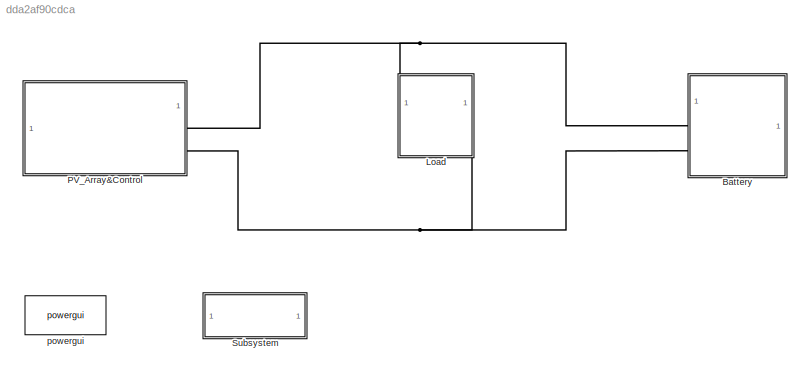
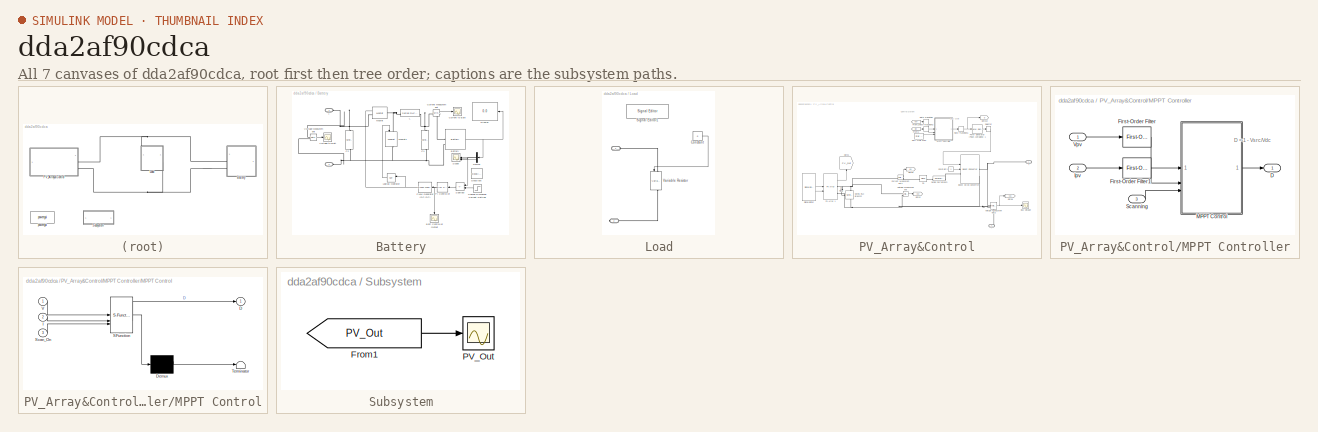
[diagram: thumbnail index - all 7 canvases of the model, root first then tree order]
MODEL slx_dda2af90cdca
KIND model
CONFIG AbsTol = auto
CONFIG EnableMultiTasking = off
CONFIG FixedStep = auto
CONFIG MaxStep = 1e2
CONFIG MinStep = auto
CONFIG RelTol = 1e-3
CONFIG SampleTimeConstraint = Unconstrained
CONFIG SolverName = VariableStepDiscrete
CONFIG StartTime = 0.0
CONFIG StopTime = 720
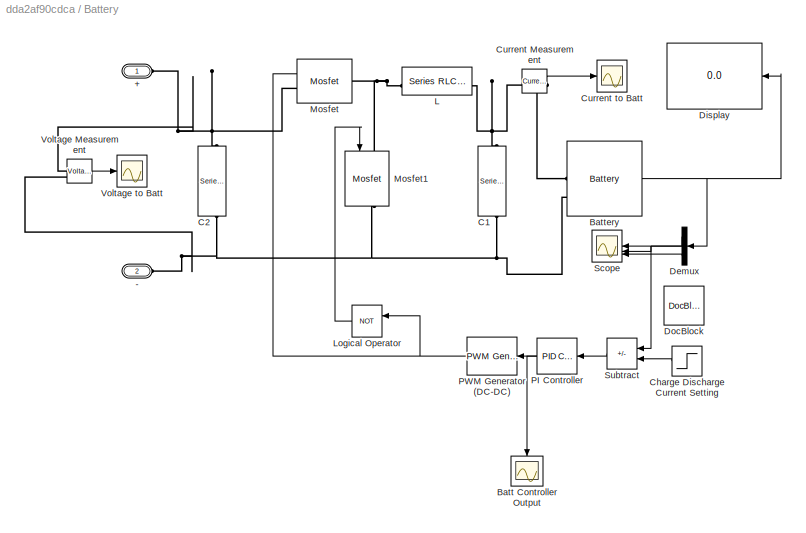
BLOCK [SubSystem] Battery
BLOCK [PMIOPort] Battery/+
  Side = Left
BLOCK [PMIOPort] Battery/-
  Port = 2
  Side = Left
BLOCK [Scope] Battery/Batt Controller Output
  Floating = off
  NameLocation = left
  NumInputPorts = 1
  ScopeSpecificationString = Simulink.scopes.TimeScopeBlockCfg('CurrentConfiguration', extmgr.ConfigurationSet(extmgr.Configuration('Core','General UI',true),extmgr.Configuration('Core','Source UI',true),extmgr.Configuration('Sources','WiredSimulink',true,'DataLoggingVariableName','ScopeData5'),extmgr.Configuration('Visuals','Time Domain',true,'SerializedDisplays',{struct('MinYLimReal','0.8','MaxYLimReal','1.00000','YLabelRea...<+1384ch>
BLOCK [Reference] Battery/Battery  REF=spsBatteryLib/Battery
  LibrarySourceBlock = electricdrivelib/Extra Sources/Battery
  SourceBlock = spsBatteryLib/Battery
  SourceType = Battery
BLOCK [Reference] Battery/C1  REF=spsSeriesRLCBranchLib/Series RLC Branch
  LibrarySourceBlock = sps_lib/Passives/Series RLC Branch
  NameLocation = left
  SourceBlock = spsSeriesRLCBranchLib/Series RLC Branch
  SourceType = Series RLC Branch
BLOCK [Reference] Battery/C2  REF=spsSeriesRLCBranchLib/Series RLC Branch
  LibrarySourceBlock = sps_lib/Passives/Series RLC Branch
  NameLocation = left
  SourceBlock = spsSeriesRLCBranchLib/Series RLC Branch
  SourceType = Series RLC Branch
BLOCK [Step] Battery/Charge Discharge Current Setting
  After = -5
  Before = 5
  SampleTime = 0
BLOCK [Reference] Battery/Current Measurement  REF=spsCurrentMeasurementLib/Current Measurement
  LibrarySourceBlock = sps_lib/Sensors and Measurements/Current Measurement
  SourceBlock = spsCurrentMeasurementLib/Current Measurement
  SourceType = Current Measurement
  UserDataPersistent = on
BLOCK [Scope] Battery/Current to Batt
  Floating = off
  NumInputPorts = 1
  ScopeSpecificationString = Simulink.scopes.TimeScopeBlockCfg('CurrentConfiguration', extmgr.ConfigurationSet(extmgr.Configuration('Core','General UI',true),extmgr.Configuration('Core','Source UI',true),extmgr.Configuration('Sources','WiredSimulink',true,'DataLoggingVariableName','ScopeData4'),extmgr.Configuration('Visuals','Time Domain',true,'SerializedDisplays',{struct('MinYLimReal','-160907166.9901','MaxYLimReal','1787765...<+1463ch>
BLOCK [Demux] Battery/Demux
  Outputs = 3
BLOCK [Display] Battery/Display
  Decimation = 1
BLOCK [Reference] Battery/DocBlock  REF=simulink/Model-Wide
Utilities/DocBlock
  SourceBlock = simulink/Model-Wide\nUtilities/DocBlock
  SourceType = DocBlock
  UserDataPersistent = on
BLOCK [Reference] Battery/L  REF=spsSeriesRLCBranchLib/Series RLC Branch
  LibrarySourceBlock = sps_lib/Passives/Series RLC Branch
  NameLocation = top
  SourceBlock = spsSeriesRLCBranchLib/Series RLC Branch
  SourceType = Series RLC Branch
BLOCK [Logic] Battery/Logical Operator
  AllPortsSameDT = off
  Operator = NOT
  OutDataTypeStr = boolean
BLOCK [Reference] Battery/Mosfet  REF=spsMosfetLib/Mosfet
  LibrarySourceBlock = sps_lib/Power Electronics/Mosfet
  SourceBlock = spsMosfetLib/Mosfet
  SourceType = Mosfet
BLOCK [Reference] Battery/Mosfet1  REF=spsMosfetLib/Mosfet
  LibrarySourceBlock = sps_lib/Power Electronics/Mosfet
  NameLocation = left
  SourceBlock = spsMosfetLib/Mosfet
  SourceType = Mosfet
BLOCK [Reference] Battery/PI Controller  REF=slpidlib/PID Controller
  SourceBlock = slpidlib/PID Controller
  SourceType = PID 1dof
BLOCK [Reference] Battery/PWM Generator (DC-DC)  REF=spsPWMGeneratorDCDCLib/PWM Generator
(DC-DC)
  LibrarySourceBlock = sps_lib/Power Electronics/Power Electronics Control/PWM Generator\n(DC-DC)
  SourceBlock = spsPWMGeneratorDCDCLib/PWM Generator\n(DC-DC)
  SourceType = PWM Generator (DC-DC)
BLOCK [Scope] Battery/Scope
  Floating = off
  NumInputPorts = 3
  ScopeSpecificationString = Simulink.scopes.TimeScopeBlockCfg('CurrentConfiguration', extmgr.ConfigurationSet(extmgr.Configuration('Core','General UI',true),extmgr.Configuration('Core','Source UI',true),extmgr.Configuration('Sources','WiredSimulink',true,'DataLoggingDecimateData',true,'DataLoggingVariableName','ScopeData1'),extmgr.Configuration('Visuals','Time Domain',true,'SerializedDisplays',{struct('MinYLimReal','-6.25','...<+2784ch>
BLOCK [Sum] Battery/Subtract
  IconShape = rectangular
  Inputs = +-
BLOCK [Reference] Battery/Voltage Measurement  REF=spsVoltageMeasurementLib/Voltage Measurement
  LibrarySourceBlock = sps_lib/Sensors and Measurements/Voltage Measurement
  SourceBlock = spsVoltageMeasurementLib/Voltage Measurement
  SourceType = Voltage Measurement
  UserDataPersistent = on
BLOCK [Scope] Battery/Voltage to Batt
  Floating = off
  NumInputPorts = 1
  ScopeSpecificationString = Simulink.scopes.TimeScopeBlockCfg('CurrentConfiguration', extmgr.ConfigurationSet(extmgr.Configuration('Core','General UI',true),extmgr.Configuration('Core','Source UI',true),extmgr.Configuration('Sources','WiredSimulink',true,'DataLoggingVariableName','ScopeData3'),extmgr.Configuration('Visuals','Time Domain',true,'SerializedDisplays',{struct('MinYLimReal','-11817570.00125','MaxYLimReal','5396474...<+1458ch>
BLOCK [SubSystem] Load
  PortSchema = {"entries":[{"content":{"sides":[{"content":{},"type":"ConnectorPlacement.EquallySpacedRectSide","uuid":"223a8ec7-d9ac-4869-be30-0e3f111284b6"},{"content":{"side":"RIGHT"},"type":"ConnectorPlacement.EquallySpacedRectSide","uuid":"4171ceb5-df16-4550-9af5-4849cdd8fb69"},{"content":{"connectorIds":["LConn1"],"side":"TOP"},"type":"ConnectorPlacement.EquallySpacedRectSide","uuid":"6a035cfa-8de8-4480-86...<+354ch>
BLOCK [PMIOPort] Load/ 
  Side = Left
BLOCK [PMIOPort] Load/  
  Port = 2
  Side = Right
BLOCK [Constant] Load/Constant
  Value = .5
BLOCK [Reference] Load/Signal Editor1  REF=SignalEditorBlockLib/Signal Editor
  Commented = on
  LibrarySourceBlock = simulink/Sources/Signal Editor
  SourceBlock = SignalEditorBlockLib/Signal Editor
  SourceType = SignalEditor
  UserDataPersistent = on
BLOCK [Reference] Load/Variable Resistor  REF=spsVariableResistorLib/Variable Resistor
  LibrarySourceBlock = sps_lib/Passives/Variable Resistor
  NameLocation = left
  SourceBlock = spsVariableResistorLib/Variable Resistor
  SourceType = Variable Resistor
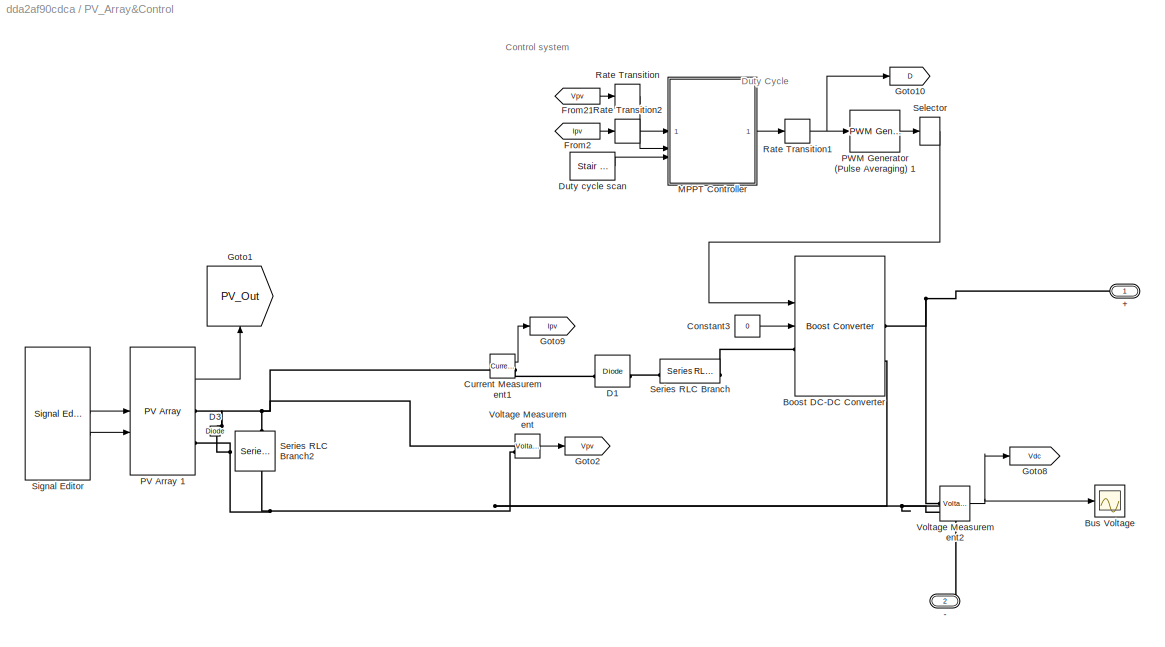
BLOCK [SubSystem] PV_Array&Control
BLOCK [PMIOPort] PV_Array&Control/+
  Side = Right
BLOCK [PMIOPort] PV_Array&Control/-
  Port = 2
  Side = Right
BLOCK [Reference] PV_Array&Control/Boost DC-DC Converter  REF=spsBoostConverterLib/Boost Converter
  SourceBlock = spsBoostConverterLib/Boost Converter
  SourceType = Boost Converter
BLOCK [Scope] PV_Array&Control/Bus Voltage
  Floating = off
  NumInputPorts = 1
  ScopeSpecificationString = Simulink.scopes.TimeScopeBlockCfg('CurrentConfiguration', extmgr.ConfigurationSet(extmgr.Configuration('Core','General UI',true),extmgr.Configuration('Core','Source UI',true),extmgr.Configuration('Sources','WiredSimulink',true,'DataLoggingVariableName','ScopeData2'),extmgr.Configuration('Visuals','Time Domain',true,'SerializedDisplays',{struct('MinYLimReal','-5097993.66708','MaxYLimReal','2273039....<+1472ch>
BLOCK [Constant] PV_Array&Control/Constant3
  Value = 0
BLOCK [Reference] PV_Array&Control/Current Measurement1  REF=spsCurrentMeasurementLib/Current Measurement
  SourceBlock = spsCurrentMeasurementLib/Current Measurement
  SourceType = Current Measurement
  UserDataPersistent = on
BLOCK [Reference] PV_Array&Control/D1  REF=spsDiodeLib/Diode
  SourceBlock = spsDiodeLib/Diode
  SourceType = Diode
BLOCK [Reference] PV_Array&Control/D3  REF=spsDiodeLib/Diode
  NameLocation = left
  SourceBlock = spsDiodeLib/Diode
  SourceType = Diode
BLOCK [Reference] PV_Array&Control/Duty cycle scan  REF=spsStairGeneratorLib/Stair
Generator
  SourceBlock = spsStairGeneratorLib/Stair\nGenerator
  SourceType = Stair Generator
BLOCK [From] PV_Array&Control/From2
  GotoTag = Ipv
  TagVisibility = global
BLOCK [From] PV_Array&Control/From21
  GotoTag = Vpv
  TagVisibility = global
BLOCK [Goto] PV_Array&Control/Goto1
  GotoTag = PV_Out
  NameLocation = right
  TagVisibility = global
BLOCK [Goto] PV_Array&Control/Goto10
  GotoTag = D
  TagVisibility = global
BLOCK [Goto] PV_Array&Control/Goto2
  GotoTag = Vpv
  TagVisibility = global
BLOCK [Goto] PV_Array&Control/Goto8
  GotoTag = Vdc
  TagVisibility = global
BLOCK [Goto] PV_Array&Control/Goto9
  GotoTag = Ipv
  TagVisibility = global
BLOCK [SubSystem] PV_Array&Control/MPPT Controller
BLOCK [Outport] PV_Array&Control/MPPT Controller/D
  OutDataTypeStr = double
  PortDimensions = 1
  VectorParamsAs1DForOutWhenUnconnected = off
BLOCK [Reference] PV_Array&Control/MPPT Controller/First-Order Filter  REF=spsFirstOrderFilterLib/First-Order
Filter
  SourceBlock = spsFirstOrderFilterLib/First-Order\nFilter
  SourceType = First-Order Filter
BLOCK [Reference] PV_Array&Control/MPPT Controller/First-Order Filter1  REF=spsFirstOrderFilterLib/First-Order
Filter
  SourceBlock = spsFirstOrderFilterLib/First-Order\nFilter
  SourceType = First-Order Filter
BLOCK [Inport] PV_Array&Control/MPPT Controller/Ipv
  Port = 2
BLOCK [SubSystem] PV_Array&Control/MPPT Controller/MPPT Control
  ErrorFcn = Stateflow.Translate.translate
  NameLocation = top
  PermitHierarchicalResolution = ExplicitOnly
  SFBlockType = MATLAB Function
  TreatAsAtomicUnit = on
BLOCK [Demux] PV_Array&Control/MPPT Controller/MPPT Control/ Demux 
  Outputs = 1
BLOCK [S-Function] PV_Array&Control/MPPT Controller/MPPT Control/ SFunction 
  EnableBusSupport = off
  FunctionName = sf_sfun
  Parameters = DeltaD_Scan,Dinit,Dmax,Dmin,deltaD
  PortCounts = [3 2]
  SFcnIsStateOwnerBlock = off
  SFunctionDeploymentMode = off
  Tag = Stateflow S-Function 2
BLOCK [Terminator] PV_Array&Control/MPPT Controller/MPPT Control/ Terminator 
BLOCK [Outport] PV_Array&Control/MPPT Controller/MPPT Control/D
  VectorParamsAs1DForOutWhenUnconnected = off
BLOCK [Inport] PV_Array&Control/MPPT Controller/MPPT Control/I
  Port = 2
BLOCK [Inport] PV_Array&Control/MPPT Controller/MPPT Control/Scan_On
  Port = 3
BLOCK [Inport] PV_Array&Control/MPPT Controller/MPPT Control/V
BLOCK [Inport] PV_Array&Control/MPPT Controller/Scanning
  Port = 3
  PortDimensions = 1
BLOCK [Inport] PV_Array&Control/MPPT Controller/Vpv
BLOCK [Reference] PV_Array&Control/PV Array 1  REF=spsPVArrayLib/PV Array
  SourceBlock = spsPVArrayLib/PV Array
  SourceType = PV array
BLOCK [Reference] PV_Array&Control/PWM Generator (Pulse Averaging) 1  REF=spsPWMGeneratorPulseAveragingLib/PWM Generator
(Pulse Averaging)
  SourceBlock = spsPWMGeneratorPulseAveragingLib/PWM Generator\n(Pulse Averaging)
  SourceType = PWM Generator Pulse Averaging
BLOCK [RateTransition] PV_Array&Control/Rate Transition
  OutPortSampleTime = Ts_Control
BLOCK [RateTransition] PV_Array&Control/Rate Transition1
  OutPortSampleTime = Ts_Power
BLOCK [RateTransition] PV_Array&Control/Rate Transition2
  OutPortSampleTime = Ts_Control
BLOCK [Selector] PV_Array&Control/Selector
  IndexOptions = Index vector (dialog)
  Indices = 1
  InputPortWidth = 2
  OutputSizes = 1
BLOCK [Reference] PV_Array&Control/Series RLC Branch  REF=spsSeriesRLCBranchLib/Series RLC Branch
  SourceBlock = spsSeriesRLCBranchLib/Series RLC Branch
  SourceType = Series RLC Branch
BLOCK [Reference] PV_Array&Control/Series RLC Branch2  REF=spsSeriesRLCBranchLib/Series RLC Branch
  NameLocation = left
  SourceBlock = spsSeriesRLCBranchLib/Series RLC Branch
  SourceType = Series RLC Branch
BLOCK [Reference] PV_Array&Control/Signal Editor  REF=SignalEditorBlockLib/Signal Editor
  LibrarySourceBlock = simulink/Sources/Signal Editor
  SourceBlock = SignalEditorBlockLib/Signal Editor
  SourceType = SignalEditor
  UserDataPersistent = on
BLOCK [Reference] PV_Array&Control/Voltage Measurement  REF=spsVoltageMeasurementLib/Voltage Measurement
  SourceBlock = spsVoltageMeasurementLib/Voltage Measurement
  SourceType = Voltage Measurement
  UserDataPersistent = on
BLOCK [Reference] PV_Array&Control/Voltage Measurement2  REF=spsVoltageMeasurementLib/Voltage Measurement
  SourceBlock = spsVoltageMeasurementLib/Voltage Measurement
  SourceType = Voltage Measurement
  UserDataPersistent = on
BLOCK [SubSystem] Subsystem
BLOCK [From] Subsystem/From1
  GotoTag = PV_Out
  TagVisibility = global
BLOCK [Scope] Subsystem/PV_Out
  Floating = off
  NumInputPorts = 1
  ScopeSpecificationString = Simulink.scopes.TimeScopeBlockCfg('CurrentConfiguration', extmgr.ConfigurationSet(extmgr.Configuration('Core','General UI',true),extmgr.Configuration('Core','Source UI',true),extmgr.Configuration('Sources','WiredSimulink',true),extmgr.Configuration('Visuals','Time Domain',true,'SerializedDisplays',{struct('MinYLimReal','-85.20601','MaxYLimReal','1094.23654','YLabelReal','','MinYLimMag','0.00000','...<+1759ch>
BLOCK [Reference] powergui  REF=spspowerguiLib/powergui
  LibrarySourceBlock = sps_lib/powergui
  Priority = 1
  SourceBlock = spspowerguiLib/powergui
  SourceType = PSB option menu block
ANNOTATION PV_Array&Control: Control system
ANNOTATION PV_Array&Control: Duty Cycle
ANNOTATION PV_Array&Control/MPPT Controller: D = 1 - Vsrc/Vdc
NET Battery/Battery:1 -> Battery/Demux:1, Battery/Display:1
LINE Battery/Charge Discharge Current Setting:1 -> Battery/Subtract:2
LINE Battery/Current Measurement:1 -> Battery/Current to Batt:1
LINE Battery/Demux:1 -> Battery/Scope:1
NET Battery/Demux:2 -> Battery/Scope:2, Battery/Subtract:1
LINE Battery/Demux:3 -> Battery/Scope:3
LINE Battery/Logical Operator:1 -> Battery/Mosfet1:1
NET Battery/PI Controller:1 -> Battery/Batt Controller Output:1, Battery/PWM Generator (DC-DC):1
NET Battery/PWM Generator (DC-DC):1 -> Battery/Logical Operator:1, Battery/Mosfet:1
LINE Battery/Subtract:1 -> Battery/PI Controller:1
LINE Battery/Voltage Measurement:1 -> Battery/Voltage to Batt:1
LINE Load/Constant:1 -> Load/Variable Resistor:1
LINE PV_Array&Control/Constant3:1 -> PV_Array&Control/Boost DC-DC Converter:2
LINE PV_Array&Control/Current Measurement1:1 -> PV_Array&Control/Goto9:1
LINE PV_Array&Control/Duty cycle scan:1 -> PV_Array&Control/MPPT Controller:3
LINE PV_Array&Control/From21:1 -> PV_Array&Control/Rate Transition:1
LINE PV_Array&Control/From2:1 -> PV_Array&Control/Rate Transition2:1
LINE PV_Array&Control/MPPT Controller/First-Order Filter1:1 -> PV_Array&Control/MPPT Controller/MPPT Control:2
LINE PV_Array&Control/MPPT Controller/First-Order Filter:1 -> PV_Array&Control/MPPT Controller/MPPT Control:1
LINE PV_Array&Control/MPPT Controller/Ipv:1 -> PV_Array&Control/MPPT Controller/First-Order Filter1:1
LINE PV_Array&Control/MPPT Controller/MPPT Control:1 -> PV_Array&Control/MPPT Controller/D:1
LINE PV_Array&Control/MPPT Controller/Scanning:1 -> PV_Array&Control/MPPT Controller/MPPT Control:3
LINE PV_Array&Control/MPPT Controller/Vpv:1 -> PV_Array&Control/MPPT Controller/First-Order Filter:1
LINE PV_Array&Control/MPPT Controller:1 -> PV_Array&Control/Rate Transition1:1
LINE PV_Array&Control/PV Array 1:1 -> PV_Array&Control/Goto1:1
LINE PV_Array&Control/PWM Generator (Pulse Averaging) 1:1 -> PV_Array&Control/Selector:1
NET PV_Array&Control/Rate Transition1:1 -> PV_Array&Control/Goto10:1, PV_Array&Control/PWM Generator (Pulse Averaging) 1:1
LINE PV_Array&Control/Rate Transition2:1 -> PV_Array&Control/MPPT Controller:2
LINE PV_Array&Control/Rate Transition:1 -> PV_Array&Control/MPPT Controller:1
LINE PV_Array&Control/Selector:1 -> PV_Array&Control/Boost DC-DC Converter:1
LINE PV_Array&Control/Signal Editor:1 -> PV_Array&Control/PV Array 1:1
LINE PV_Array&Control/Signal Editor:2 -> PV_Array&Control/PV Array 1:2
NET PV_Array&Control/Voltage Measurement2:1 -> PV_Array&Control/Bus Voltage:1, PV_Array&Control/Goto8:1
LINE PV_Array&Control/Voltage Measurement:1 -> PV_Array&Control/Goto2:1
LINE Subsystem/From1:1 -> Subsystem/PV_Out:1
PNET net1: Battery/+:RConn1 -- Battery/C2:LConn1 -- Battery/Mosfet:LConn1 -- Battery/Voltage Measurement:LConn1
PNET net2: Battery/-:RConn1 -- Battery/Battery:LConn2 -- Battery/C1:RConn1 -- Battery/C2:RConn1 -- Battery/Mosfet1:RConn1 -- Battery/Voltage Measurement:LConn2
PLINE Battery/Battery:LConn1 -- Battery/Current Measurement:RConn1
PNET net3: Battery/C1:LConn1 -- Battery/Current Measurement:LConn1 -- Battery/L:RConn1
PNET net4: Battery/L:LConn1 -- Battery/Mosfet1:LConn1 -- Battery/Mosfet:RConn1
PNET net5: Battery:LConn1 -- Load:LConn1 -- PV_Array&Control:RConn1
PNET net6: Battery:LConn2 -- Load:RConn1 -- PV_Array&Control:RConn2
PLINE Load/  :RConn1 -- Load/Variable Resistor:RConn1
PLINE Load/ :RConn1 -- Load/Variable Resistor:LConn1
PNET net7: PV_Array&Control/+:RConn1 -- PV_Array&Control/Boost DC-DC Converter:RConn1 -- PV_Array&Control/Voltage Measurement2:LConn1
PNET net8: PV_Array&Control/-:RConn1 -- PV_Array&Control/Boost DC-DC Converter:RConn2 -- PV_Array&Control/D3:LConn1 -- PV_Array&Control/PV Array 1:RConn2 -- PV_Array&Control/Series RLC Branch2:RConn1 -- PV_Array&Control/Voltage Measurement2:LConn2 -- PV_Array&Control/Voltage Measurement:LConn2
PLINE PV_Array&Control/Boost DC-DC Converter:LConn1 -- PV_Array&Control/Series RLC Branch:RConn1
PNET net9: PV_Array&Control/Current Measurement1:LConn1 -- PV_Array&Control/D3:RConn1 -- PV_Array&Control/PV Array 1:RConn1 -- PV_Array&Control/Series RLC Branch2:LConn1 -- PV_Array&Control/Voltage Measurement:LConn1
PLINE PV_Array&Control/Current Measurement1:RConn1 -- PV_Array&Control/D1:LConn1
PLINE PV_Array&Control/D1:RConn1 -- PV_Array&Control/Series RLC Branch:LConn1
note: NET lines group one-source signal fan-out (src -> all destinations, sorted); 1:1 wires keep LINE; PNET lines group multi-terminal physical nets as a canonical sorted terminal list (undirected conserving connections); 2-terminal nets keep the pairwise PLINE form
CHART PV_Array&Control/MPPT
Controller/MPPT Control states=1 transitions=1
  STATE_LABEL 'eML_blk_kernel()'
  STATE_LABEL 'SCRIPT:\nfunction D   = PandO(V, I, Dmax, Dmin, deltaD, Dinit, Scan_On, DeltaD_Scan)\n\n% MPPT controller based on the Perturb & Observe algorithm.\n\n% D output = Duty cycle of the boost converter (value between 0 and 1)\n% V input = PV array terminal voltage (V)\n% I input = PV array current (A)\n% D = 1 - Vinput/Voutput (increasing D decrease Vin)\n\npersistent Vold Pold Dold Scan_On_Old Pmax D_Pmax V_Pm...<+944ch>'
CHART  states=0 transitions=0
